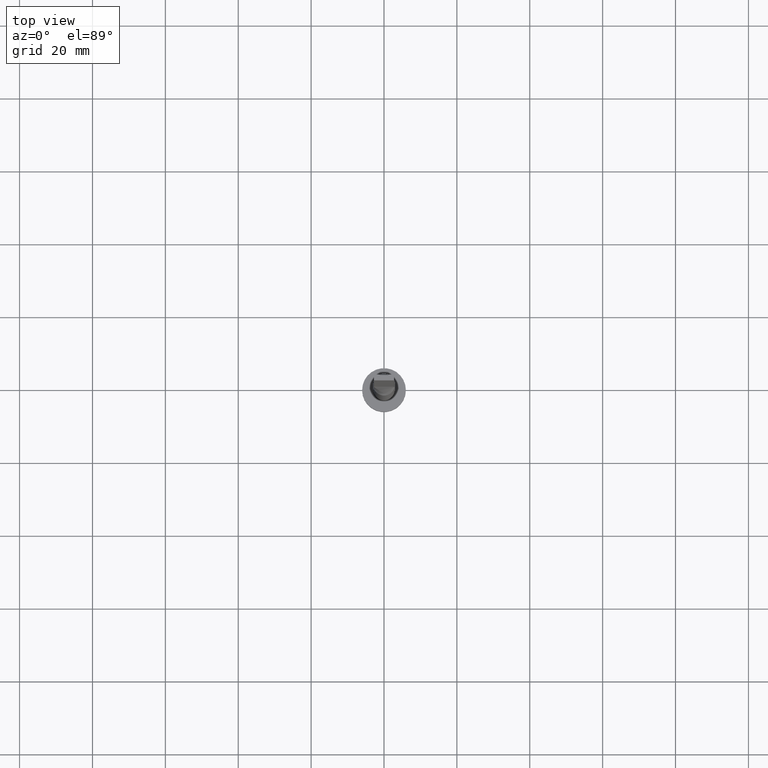
[diagram: clean part render]
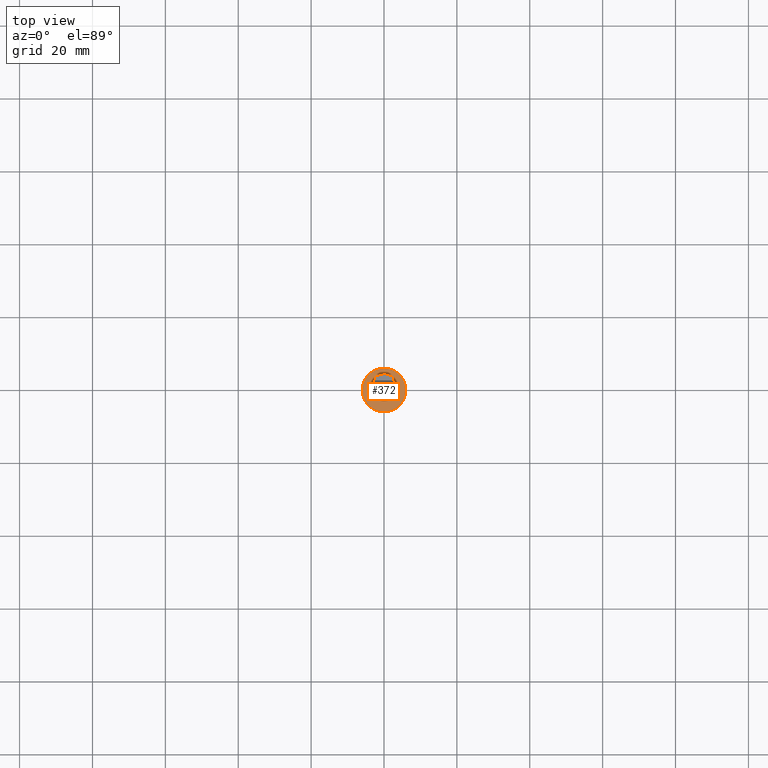
[diagram: same view with one face highlighted and labeled with its STEP entity id]
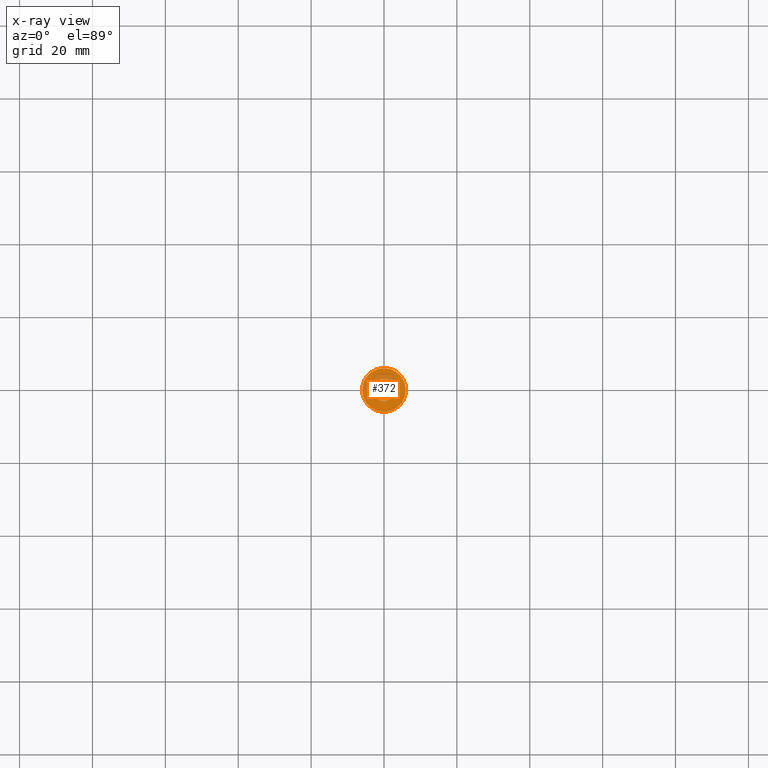
[diagram: x-ray of the same camera — body ghosted, the highlighted face saturated]
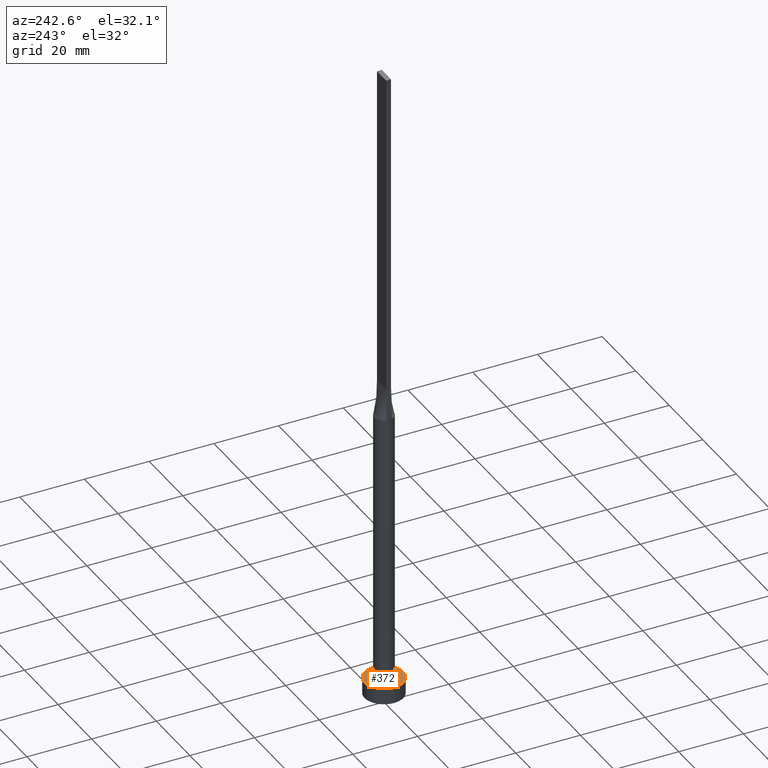
[diagram: same view with one face highlighted and labeled with its STEP entity id]
A machine part, top view. The second image highlights one B-rep face of the part: STEP entity #372.
The next image is the same camera in x-ray: the body ghosted, the highlighted face saturated — about 13% of this face is hidden behind the body in this view.
A second angle (auxiliary view) of the same face is appended — the face is thin or edge-on in the first view.
In plain terms, the highlighted planar face has unit normal (0, 0, 1).
Its self-contained STEP definition (entity closure, byte-faithful):
#1 = CARTESIAN_POINT ( 'NONE',  ( -6.000000000000000888, 0.000000000000000000, 5.000000000000000000 ) ) ;
#8 = EDGE_LOOP ( 'NONE', ( #475, #428 ) ) ;
#18 = EDGE_CURVE ( 'NONE', #274, #464, #47, .T. ) ;
#34 = EDGE_CURVE ( 'NONE', #555, #552, #298, .T. ) ;
#45 = AXIS2_PLACEMENT_3D ( 'NONE', #329, #197, #341 ) ;
#47 = CIRCLE ( 'NONE', #450, 6.000000000000000888 ) ;
#52 = ORIENTED_EDGE ( 'NONE', *, *, #534, .F. ) ;
#67 = DIRECTION ( 'NONE',  ( 1.000000000000000000, 0.000000000000000000, 0.000000000000000000 ) ) ;
#71 = DIRECTION ( 'NONE',  ( 1.000000000000000000, 0.000000000000000000, 0.000000000000000000 ) ) ;
#87 = DIRECTION ( 'NONE',  ( 0.000000000000000000, 0.000000000000000000, 1.000000000000000000 ) ) ;
#92 = FACE_BOUND ( 'NONE', #466, .T. ) ;
#95 = FACE_OUTER_BOUND ( 'NONE', #8, .T. ) ;
#104 = PLANE ( 'NONE',  #430 ) ;
#128 = AXIS2_PLACEMENT_3D ( 'NONE', #236, #328, #67 ) ;
#129 = ORIENTED_EDGE ( 'NONE', *, *, #34, .F. ) ;
#197 = DIRECTION ( 'NONE',  ( 0.000000000000000000, 0.000000000000000000, 1.000000000000000000 ) ) ;
#226 = CIRCLE ( 'NONE', #45, 6.000000000000000888 ) ;
#236 = CARTESIAN_POINT ( 'NONE',  ( 0.000000000000000000, 0.000000000000000000, 5.000000000000000000 ) ) ;
#249 = DIRECTION ( 'NONE',  ( 0.000000000000000000, 0.000000000000000000, 1.000000000000000000 ) ) ;
#252 = CARTESIAN_POINT ( 'NONE',  ( 0.000000000000000000, 0.000000000000000000, 5.000000000000000000 ) ) ;
#272 = DIRECTION ( 'NONE',  ( 1.000000000000000000, 0.000000000000000000, -0.000000000000000000 ) ) ;
#273 = CIRCLE ( 'NONE', #573, 3.000000000000000444 ) ;
#274 = VERTEX_POINT ( 'NONE', #1 ) ;
#298 = CIRCLE ( 'NONE', #128, 3.000000000000000444 ) ;
#306 = CARTESIAN_POINT ( 'NONE',  ( 0.000000000000000000, 0.000000000000000000, 5.000000000000000000 ) ) ;
#328 = DIRECTION ( 'NONE',  ( 0.000000000000000000, 0.000000000000000000, 1.000000000000000000 ) ) ;
#329 = CARTESIAN_POINT ( 'NONE',  ( 0.000000000000000000, 0.000000000000000000, 5.000000000000000000 ) ) ;
#341 = DIRECTION ( 'NONE',  ( 1.000000000000000000, 0.000000000000000000, 0.000000000000000000 ) ) ;
#365 = DIRECTION ( 'NONE',  ( 1.000000000000000000, 0.000000000000000000, 0.000000000000000000 ) ) ;
#372 = ADVANCED_FACE ( 'NONE', ( #92, #95 ), #104, .T. ) ;
#395 = CARTESIAN_POINT ( 'NONE',  ( -3.000000000000000444, 0.000000000000000000, 5.000000000000000000 ) ) ;
#405 = EDGE_CURVE ( 'NONE', #464, #274, #226, .T. ) ;
#425 = DIRECTION ( 'NONE',  ( 0.000000000000000000, 0.000000000000000000, 1.000000000000000000 ) ) ;
#428 = ORIENTED_EDGE ( 'NONE', *, *, #405, .T. ) ;
#430 = AXIS2_PLACEMENT_3D ( 'NONE', #306, #87, #272 ) ;
#450 = AXIS2_PLACEMENT_3D ( 'NONE', #503, #249, #71 ) ;
#464 = VERTEX_POINT ( 'NONE', #553 ) ;
#466 = EDGE_LOOP ( 'NONE', ( #129, #52 ) ) ;
#475 = ORIENTED_EDGE ( 'NONE', *, *, #18, .T. ) ;
#503 = CARTESIAN_POINT ( 'NONE',  ( 0.000000000000000000, 0.000000000000000000, 5.000000000000000000 ) ) ;
#534 = EDGE_CURVE ( 'NONE', #552, #555, #273, .T. ) ;
#538 = CARTESIAN_POINT ( 'NONE',  ( 3.000000000000000444, 3.673940397442060361E-16, 5.000000000000000000 ) ) ;
#552 = VERTEX_POINT ( 'NONE', #538 ) ;
#553 = CARTESIAN_POINT ( 'NONE',  ( 6.000000000000000888, 7.347880794884120722E-16, 5.000000000000000000 ) ) ;
#555 = VERTEX_POINT ( 'NONE', #395 ) ;
#573 = AXIS2_PLACEMENT_3D ( 'NONE', #252, #425, #365 ) ;